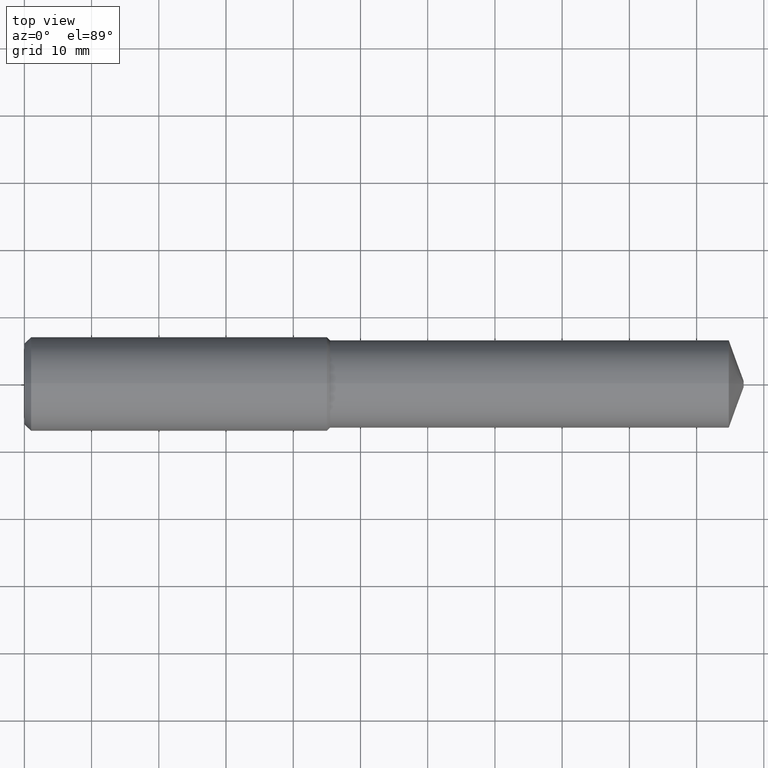
[diagram: clean part render]
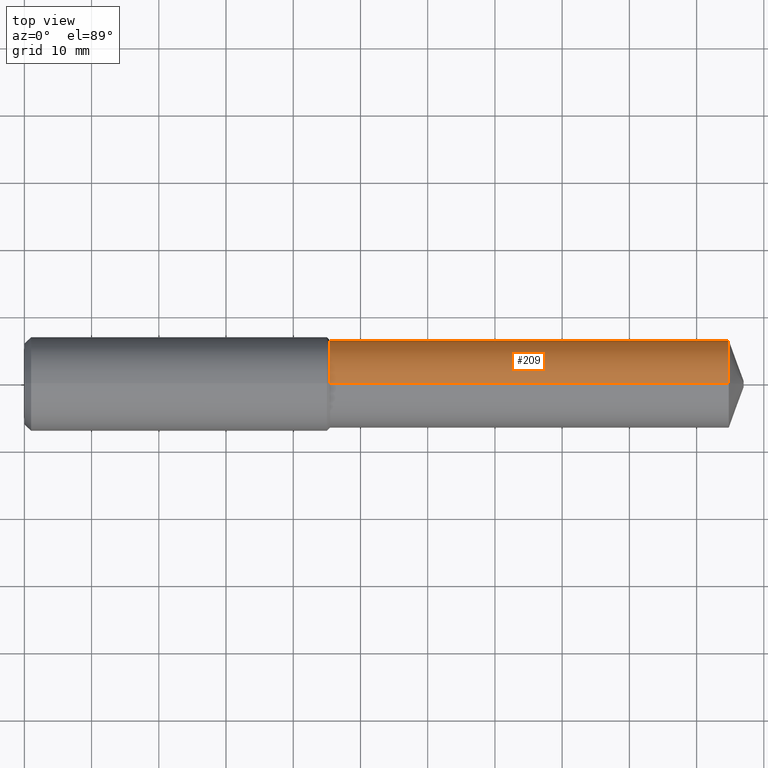
[diagram: same view with one face highlighted and labeled with its STEP entity id]
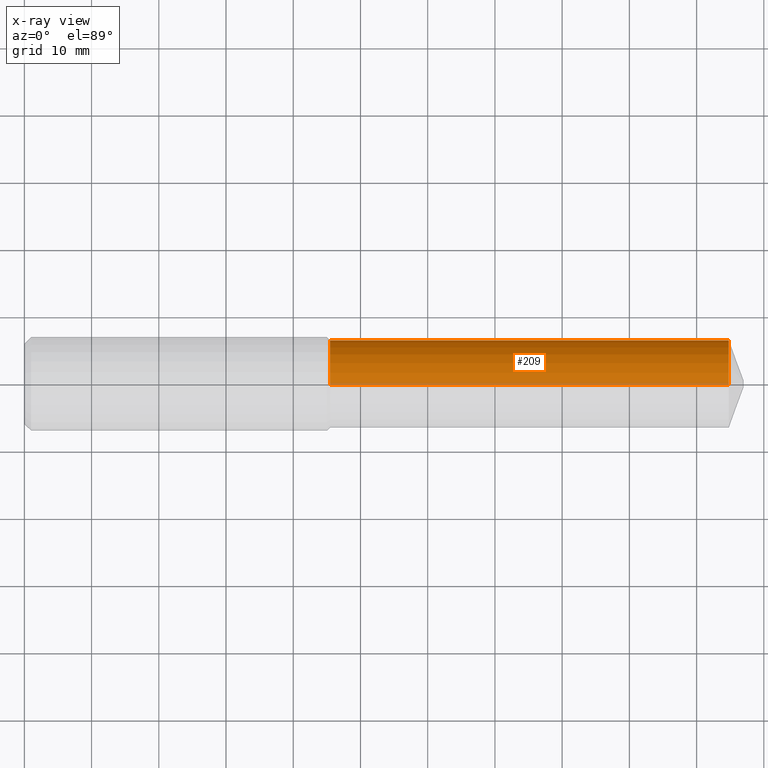
[diagram: x-ray of the same camera — body ghosted, the highlighted face saturated]
A machine part, top view. The second image highlights one B-rep face of the part: STEP entity #209.
The next image is the same camera in x-ray: the body ghosted, the highlighted face saturated — about 3% of this face is hidden behind the body in this view.
In plain terms, the highlighted cylindrical surface (partial cylindrical patch) has radius 6.5151 mm, axis along (1, -0, -0).
Its self-contained STEP definition (entity closure, byte-faithful):
#1 = DIRECTION ( 'NONE',  ( 1.000000000000000000, -0.000000000000000000, -0.000000000000000000 ) ) ;
#11 = CARTESIAN_POINT ( 'NONE',  ( 1.790744094488189164, 0.000000000000000000, -0.2565000000000002278 ) ) ;
#38 = CARTESIAN_POINT ( 'NONE',  ( 1.790744094488189164, 3.141219039812965114E-17, 0.2565000000000002278 ) ) ;
#41 = AXIS2_PLACEMENT_3D ( 'NONE', #361, #1, #178 ) ;
#45 = AXIS2_PLACEMENT_3D ( 'NONE', #262, #149, #64 ) ;
#47 = LINE ( 'NONE', #102, #223 ) ;
#49 = VERTEX_POINT ( 'NONE', #206 ) ;
#57 = CIRCLE ( 'NONE', #45, 0.2565000000000005054 ) ;
#64 = DIRECTION ( 'NONE',  ( 0.000000000000000000, 0.000000000000000000, -1.000000000000000000 ) ) ;
#69 = EDGE_CURVE ( 'NONE', #114, #49, #264, .T. ) ;
#78 = ORIENTED_EDGE ( 'NONE', *, *, #87, .F. ) ;
#85 = ORIENTED_EDGE ( 'NONE', *, *, #69, .T. ) ;
#87 = EDGE_CURVE ( 'NONE', #168, #49, #57, .T. ) ;
#102 = CARTESIAN_POINT ( 'NONE',  ( -0.03808593750000075634, 0.000000000000000000, -0.2565000000000003944 ) ) ;
#114 = VERTEX_POINT ( 'NONE', #38 ) ;
#133 = EDGE_CURVE ( 'NONE', #345, #114, #214, .T. ) ;
#144 = EDGE_LOOP ( 'NONE', ( #227, #85, #78, #373 ) ) ;
#146 = CARTESIAN_POINT ( 'NONE',  ( -0.03808593750000075634, 3.141219039812965731E-17, 0.2565000000000003944 ) ) ;
#149 = DIRECTION ( 'NONE',  ( 1.000000000000000000, -0.000000000000000000, -0.000000000000000000 ) ) ;
#168 = VERTEX_POINT ( 'NONE', #175 ) ;
#173 = VECTOR ( 'NONE', #359, 39.37007874015748143 ) ;
#175 = CARTESIAN_POINT ( 'NONE',  ( 4.125609539207228948, 3.141219039812967579E-17, -0.2565000000000005054 ) ) ;
#178 = DIRECTION ( 'NONE',  ( 0.000000000000000000, 0.000000000000000000, -1.000000000000000000 ) ) ;
#191 = FACE_OUTER_BOUND ( 'NONE', #144, .T. ) ;
#204 = AXIS2_PLACEMENT_3D ( 'NONE', #363, #242, #338 ) ;
#206 = CARTESIAN_POINT ( 'NONE',  ( 4.125609539207228948, 0.000000000000000000, 0.2565000000000005054 ) ) ;
#209 = ADVANCED_FACE ( 'NONE', ( #191 ), #366, .T. ) ;
#214 = CIRCLE ( 'NONE', #41, 0.2565000000000002278 ) ;
#223 = VECTOR ( 'NONE', #341, 39.37007874015748143 ) ;
#227 = ORIENTED_EDGE ( 'NONE', *, *, #133, .T. ) ;
#242 = DIRECTION ( 'NONE',  ( 1.000000000000000000, -0.000000000000000000, -0.000000000000000000 ) ) ;
#262 = CARTESIAN_POINT ( 'NONE',  ( 4.125609539207228948, 0.000000000000000000, 0.000000000000000000 ) ) ;
#264 = LINE ( 'NONE', #146, #173 ) ;
#325 = EDGE_CURVE ( 'NONE', #345, #168, #47, .T. ) ;
#338 = DIRECTION ( 'NONE',  ( 0.000000000000000000, 0.000000000000000000, -1.000000000000000000 ) ) ;
#341 = DIRECTION ( 'NONE',  ( 1.000000000000000000, -0.000000000000000000, -0.000000000000000000 ) ) ;
#345 = VERTEX_POINT ( 'NONE', #11 ) ;
#359 = DIRECTION ( 'NONE',  ( 1.000000000000000000, -0.000000000000000000, -0.000000000000000000 ) ) ;
#361 = CARTESIAN_POINT ( 'NONE',  ( 1.790744094488189164, 0.000000000000000000, 0.000000000000000000 ) ) ;
#363 = CARTESIAN_POINT ( 'NONE',  ( -0.03808593750000075634, 0.000000000000000000, 0.000000000000000000 ) ) ;
#366 = CYLINDRICAL_SURFACE ( 'NONE', #204, 0.2565000000000003944 ) ;
#373 = ORIENTED_EDGE ( 'NONE', *, *, #325, .F. ) ;